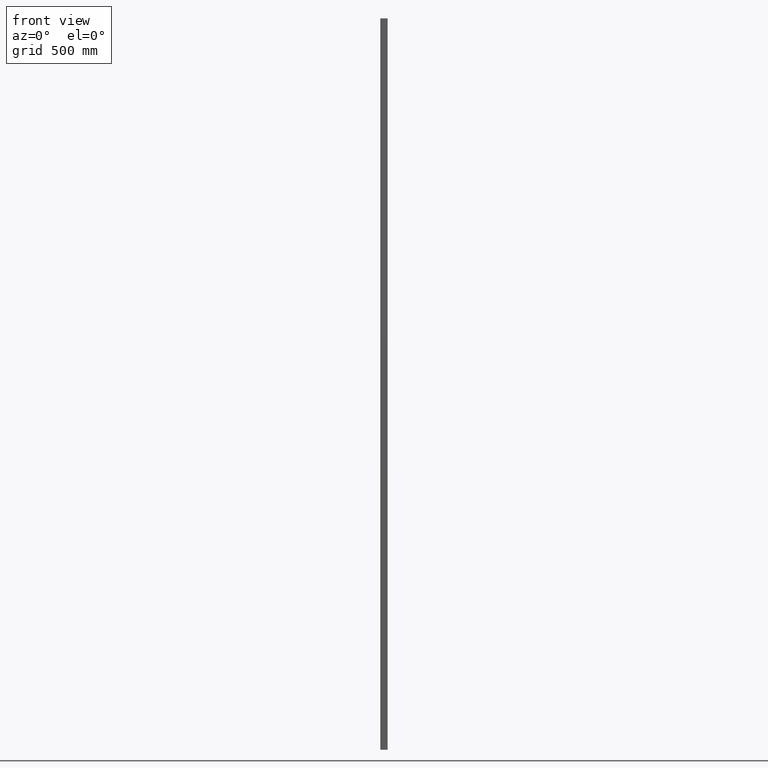
[diagram: clean part render]
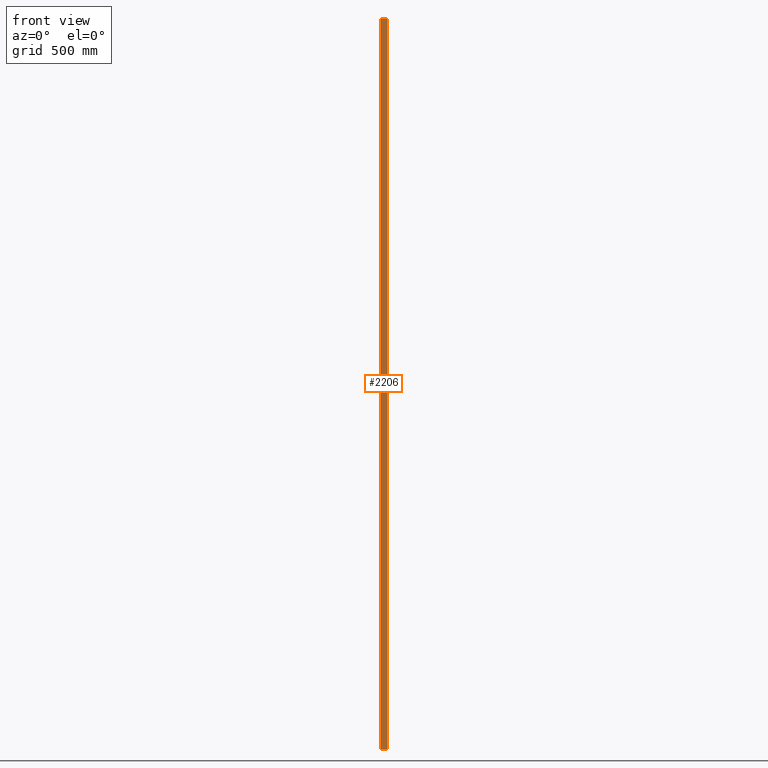
[diagram: same view with one face highlighted and labeled with its STEP entity id]
A machine part, front view. The second image highlights one B-rep face of the part: STEP entity #2206.
In plain terms, the highlighted planar face has unit normal (0, 1, 0).
Its self-contained STEP definition (entity closure, byte-faithful):
#338 = EDGE_CURVE ( 'NONE', #2196, #2007, #13085, .T. ) ;
#744 = CARTESIAN_POINT ( 'NONE',  ( -12.00000000000001421, -10.00000000000000178, 1500.000000000000000 ) ) ;
#834 = FACE_OUTER_BOUND ( 'NONE', #8064, .T. ) ;
#1354 = VECTOR ( 'NONE', #13393, 1000.000000000000000 ) ;
#1537 = LINE ( 'NONE', #744, #7589 ) ;
#1588 = ORIENTED_EDGE ( 'NONE', *, *, #5112, .F. ) ;
#1999 = CARTESIAN_POINT ( 'NONE',  ( -12.00000000000001421, -10.00000000000000178, 1500.000000000000000 ) ) ;
#2007 = VERTEX_POINT ( 'NONE', #5260 ) ;
#2039 = ORIENTED_EDGE ( 'NONE', *, *, #4835, .T. ) ;
#2100 = DIRECTION ( 'NONE',  ( 0.000000000000000000, -0.000000000000000000, 1.000000000000000000 ) ) ;
#2138 = PLANE ( 'NONE',  #3998 ) ;
#2196 = VERTEX_POINT ( 'NONE', #8379 ) ;
#2206 = ADVANCED_FACE ( 'NONE', ( #834 ), #2138, .F. ) ;
#2210 = CARTESIAN_POINT ( 'NONE',  ( 11.99999999999998934, -9.999999999999998224, 1500.000000000000000 ) ) ;
#3819 = CARTESIAN_POINT ( 'NONE',  ( 11.99999999999998934, -9.999999999999998224, 1500.000000000000000 ) ) ;
#3946 = DIRECTION ( 'NONE',  ( 1.000000000000000000, 0.000000000000000000, 0.000000000000000000 ) ) ;
#3998 = AXIS2_PLACEMENT_3D ( 'NONE', #11433, #6168, #2100 ) ;
#4835 = EDGE_CURVE ( 'NONE', #2007, #8733, #12899, .T. ) ;
#5112 = EDGE_CURVE ( 'NONE', #2196, #8396, #1537, .T. ) ;
#5260 = CARTESIAN_POINT ( 'NONE',  ( -12.00000000000001421, -10.00000000000000178, -1500.000000000000000 ) ) ;
#6168 = DIRECTION ( 'NONE',  ( 0.000000000000000000, 1.000000000000000000, 0.000000000000000000 ) ) ;
#7589 = VECTOR ( 'NONE', #3946, 1000.000000000000000 ) ;
#8064 = EDGE_LOOP ( 'NONE', ( #2039, #12912, #1588, #12272 ) ) ;
#8379 = CARTESIAN_POINT ( 'NONE',  ( -12.00000000000001421, -10.00000000000000178, 1500.000000000000000 ) ) ;
#8396 = VERTEX_POINT ( 'NONE', #2210 ) ;
#8733 = VERTEX_POINT ( 'NONE', #10461 ) ;
#9350 = LINE ( 'NONE', #3819, #10341 ) ;
#10093 = DIRECTION ( 'NONE',  ( -0.000000000000000000, -0.000000000000000000, -1.000000000000000000 ) ) ;
#10341 = VECTOR ( 'NONE', #10093, 1000.000000000000000 ) ;
#10461 = CARTESIAN_POINT ( 'NONE',  ( 11.99999999999998934, -9.999999999999998224, -1500.000000000000000 ) ) ;
#11433 = CARTESIAN_POINT ( 'NONE',  ( -12.00000000000001421, -10.00000000000000178, 1500.000000000000000 ) ) ;
#11617 = DIRECTION ( 'NONE',  ( 1.000000000000000000, 0.000000000000000000, 0.000000000000000000 ) ) ;
#11671 = CARTESIAN_POINT ( 'NONE',  ( -12.00000000000001421, -10.00000000000000178, -1500.000000000000000 ) ) ;
#12272 = ORIENTED_EDGE ( 'NONE', *, *, #338, .T. ) ;
#12595 = VECTOR ( 'NONE', #11617, 1000.000000000000000 ) ;
#12794 = EDGE_CURVE ( 'NONE', #8396, #8733, #9350, .T. ) ;
#12899 = LINE ( 'NONE', #11671, #12595 ) ;
#12912 = ORIENTED_EDGE ( 'NONE', *, *, #12794, .F. ) ;
#13085 = LINE ( 'NONE', #1999, #1354 ) ;
#13393 = DIRECTION ( 'NONE',  ( -0.000000000000000000, -0.000000000000000000, -1.000000000000000000 ) ) ;